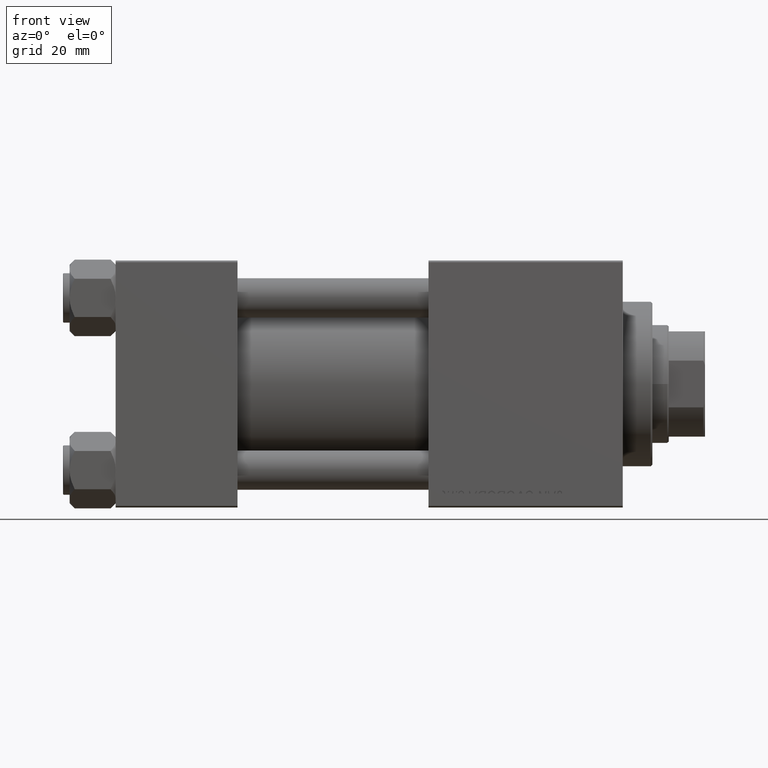
[diagram: clean part render]
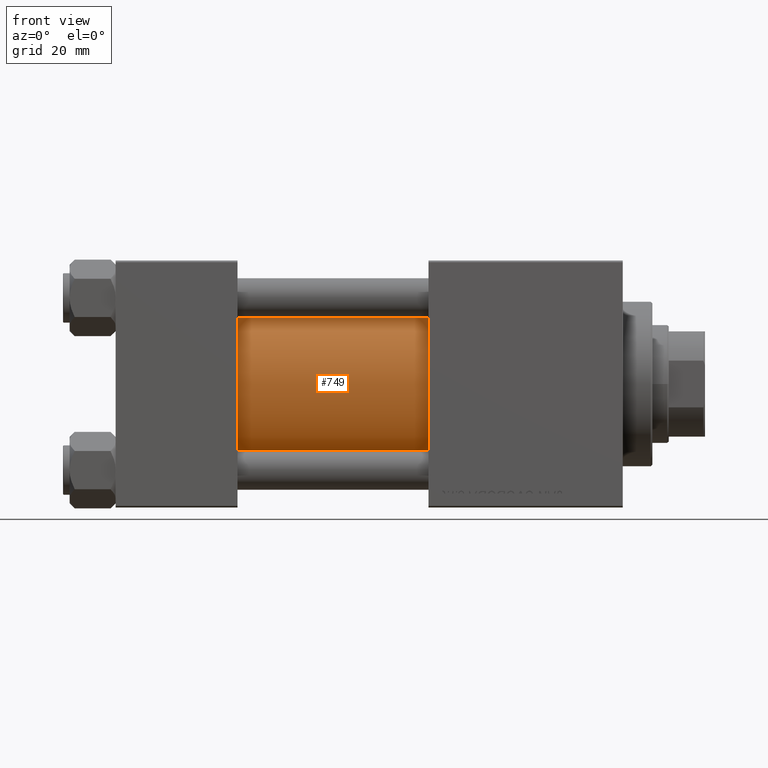
[diagram: same view with one face highlighted and labeled with its STEP entity id]
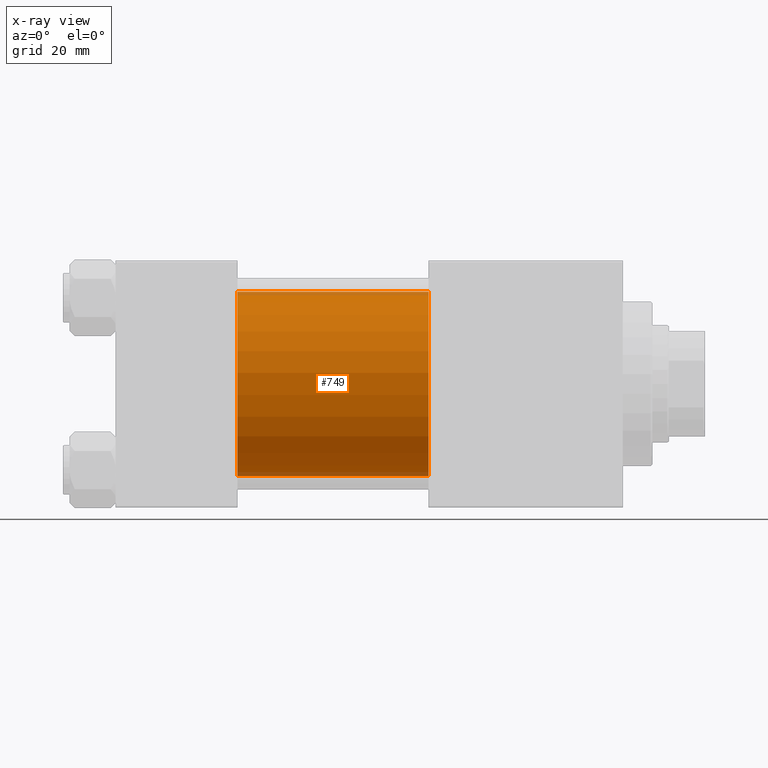
[diagram: x-ray of the same camera — body ghosted, the highlighted face saturated]
A machine part, front view. The second image highlights one B-rep face of the part: STEP entity #749.
The next image is the same camera in x-ray: the body ghosted, the highlighted face saturated — about 4% of this face is hidden behind the body in this view.
In plain terms, the highlighted cylindrical surface (partial cylindrical patch) has radius 28 mm, axis along (-1, -0, -0).
Its self-contained STEP definition (entity closure, byte-faithful):
#749 = ADVANCED_FACE ( 'NONE', ( #16388 ), #23761, .T. ) ;
#1803 = ORIENTED_EDGE ( 'NONE', *, *, #29264, .T. ) ;
#2152 = LINE ( 'NONE', #49340, #8256 ) ;
#2424 = VERTEX_POINT ( 'NONE', #10117 ) ;
#4694 = DIRECTION ( 'NONE',  ( -1.000000000000000000, -0.000000000000000000, -0.000000000000000000 ) ) ;
#5014 = DIRECTION ( 'NONE',  ( 1.000000000000000000, 0.000000000000000000, 0.000000000000000000 ) ) ;
#6151 = VERTEX_POINT ( 'NONE', #27845 ) ;
#6358 = EDGE_CURVE ( 'NONE', #20317, #2424, #2152, .T. ) ;
#8256 = VECTOR ( 'NONE', #36925, 1000.000000000000000 ) ;
#8684 = ORIENTED_EDGE ( 'NONE', *, *, #6358, .F. ) ;
#10117 = CARTESIAN_POINT ( 'NONE',  ( 37.00000000000000000, 8.269258236473776482E-16, -28.00000000000000000 ) ) ;
#11954 = AXIS2_PLACEMENT_3D ( 'NONE', #47018, #36109, #47275 ) ;
#16388 = FACE_OUTER_BOUND ( 'NONE', #22062, .T. ) ;
#20317 = VERTEX_POINT ( 'NONE', #30354 ) ;
#20957 = DIRECTION ( 'NONE',  ( 0.000000000000000000, 0.000000000000000000, 1.000000000000000000 ) ) ;
#22062 = EDGE_LOOP ( 'NONE', ( #8684, #29045, #1803, #36600 ) ) ;
#22657 = AXIS2_PLACEMENT_3D ( 'NONE', #24507, #4694, #20957 ) ;
#23580 = DIRECTION ( 'NONE',  ( -1.000000000000000000, -0.000000000000000000, -0.000000000000000000 ) ) ;
#23761 = CYLINDRICAL_SURFACE ( 'NONE', #22657, 28.00000000000000000 ) ;
#23825 = CARTESIAN_POINT ( 'NONE',  ( 95.00000000000000000, -2.602085213965210642E-15, 28.00000000000000000 ) ) ;
#24507 = CARTESIAN_POINT ( 'NONE',  ( 95.00000000000000000, -2.602085213965210642E-15, 0.000000000000000000 ) ) ;
#26855 = EDGE_CURVE ( 'NONE', #6151, #2424, #41913, .T. ) ;
#27380 = DIRECTION ( 'NONE',  ( 0.000000000000000000, 0.000000000000000000, -1.000000000000000000 ) ) ;
#27845 = CARTESIAN_POINT ( 'NONE',  ( 37.00000000000000000, -2.602085213965210642E-15, 28.00000000000000000 ) ) ;
#29045 = ORIENTED_EDGE ( 'NONE', *, *, #37505, .F. ) ;
#29264 = EDGE_CURVE ( 'NONE', #48489, #6151, #31179, .T. ) ;
#30354 = CARTESIAN_POINT ( 'NONE',  ( 95.00000000000000000, 8.269258236473776482E-16, -28.00000000000000000 ) ) ;
#31179 = LINE ( 'NONE', #23825, #31473 ) ;
#31473 = VECTOR ( 'NONE', #23580, 1000.000000000000000 ) ;
#31604 = CIRCLE ( 'NONE', #38071, 28.00000000000000000 ) ;
#36109 = DIRECTION ( 'NONE',  ( 1.000000000000000000, -0.000000000000000000, 0.000000000000000000 ) ) ;
#36600 = ORIENTED_EDGE ( 'NONE', *, *, #26855, .T. ) ;
#36925 = DIRECTION ( 'NONE',  ( -1.000000000000000000, -0.000000000000000000, -0.000000000000000000 ) ) ;
#37505 = EDGE_CURVE ( 'NONE', #48489, #20317, #31604, .T. ) ;
#38071 = AXIS2_PLACEMENT_3D ( 'NONE', #39775, #5014, #27380 ) ;
#39775 = CARTESIAN_POINT ( 'NONE',  ( 95.00000000000000000, -2.602085213965210642E-15, 0.000000000000000000 ) ) ;
#40104 = CARTESIAN_POINT ( 'NONE',  ( 95.00000000000000000, -2.602085213965210642E-15, 28.00000000000000000 ) ) ;
#41913 = CIRCLE ( 'NONE', #11954, 28.00000000000000000 ) ;
#47018 = CARTESIAN_POINT ( 'NONE',  ( 37.00000000000000000, -2.602085213965210642E-15, 0.000000000000000000 ) ) ;
#47275 = DIRECTION ( 'NONE',  ( 0.000000000000000000, 0.000000000000000000, 1.000000000000000000 ) ) ;
#48489 = VERTEX_POINT ( 'NONE', #40104 ) ;
#49340 = CARTESIAN_POINT ( 'NONE',  ( 95.00000000000000000, 8.269258236473776482E-16, -28.00000000000000000 ) ) ;